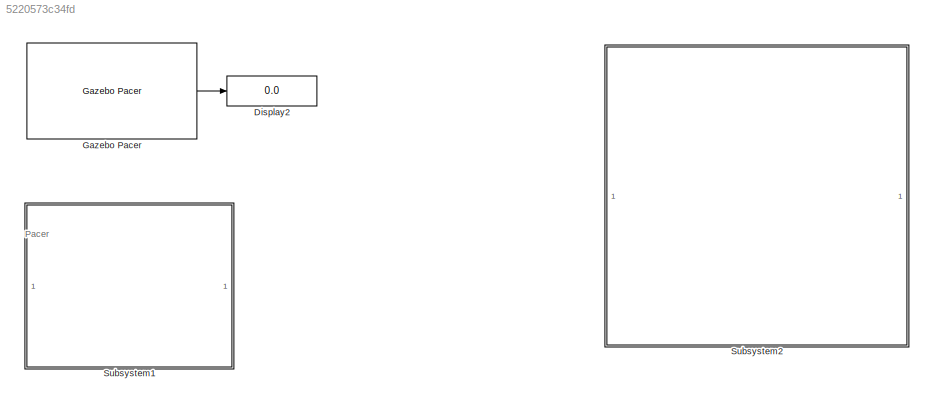
MODEL slx_5220573c34fd
KIND model
CONFIG AbsTol = auto
CONFIG EnableMultiTasking = off
CONFIG FixedStep = auto
CONFIG MaxStep = auto
CONFIG MinStep = auto
CONFIG RelTol = 1e-3
CONFIG SampleTimeConstraint = Unconstrained
CONFIG SolverName = VariableStepAuto
CONFIG StartTime = 0.0
CONFIG StopTime = 2
BLOCK [Display] Display2
  Decimation = 1
BLOCK [Reference] Gazebo Pacer  REF=robotgazebolib/Gazebo Pacer
  SourceBlock = robotgazebolib/Gazebo Pacer
  SourceType = Gazebo Pacer
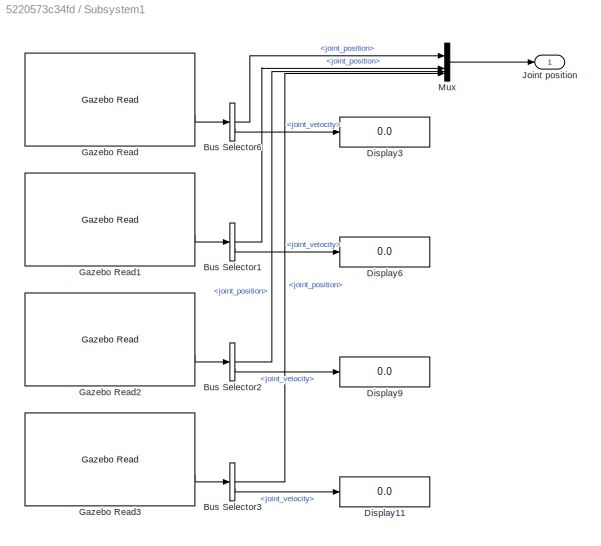
BLOCK [SubSystem] Subsystem1
BLOCK [BusSelector] Subsystem1/Bus Selector1
  OutputSignals = joint_position,joint_velocity
BLOCK [BusSelector] Subsystem1/Bus Selector2
  OutputSignals = joint_position,joint_velocity
BLOCK [BusSelector] Subsystem1/Bus Selector3
  OutputSignals = joint_position,joint_velocity
BLOCK [BusSelector] Subsystem1/Bus Selector6
  OutputSignals = joint_position,joint_velocity
BLOCK [Display] Subsystem1/Display11
  Decimation = 1
BLOCK [Display] Subsystem1/Display3
  Decimation = 1
BLOCK [Display] Subsystem1/Display6
  Decimation = 1
BLOCK [Display] Subsystem1/Display9
  Decimation = 1
BLOCK [Reference] Subsystem1/Gazebo Read  REF=robotgazebolib/Gazebo Read
  SourceBlock = robotgazebolib/Gazebo Read
  SourceType = Gazebo Read
BLOCK [Reference] Subsystem1/Gazebo Read1  REF=robotgazebolib/Gazebo Read
  SourceBlock = robotgazebolib/Gazebo Read
  SourceType = Gazebo Read
BLOCK [Reference] Subsystem1/Gazebo Read2  REF=robotgazebolib/Gazebo Read
  SourceBlock = robotgazebolib/Gazebo Read
  SourceType = Gazebo Read
BLOCK [Reference] Subsystem1/Gazebo Read3  REF=robotgazebolib/Gazebo Read
  SourceBlock = robotgazebolib/Gazebo Read
  SourceType = Gazebo Read
BLOCK [Outport] Subsystem1/Joint position
BLOCK [Mux] Subsystem1/Mux
  DisplayOption = bar
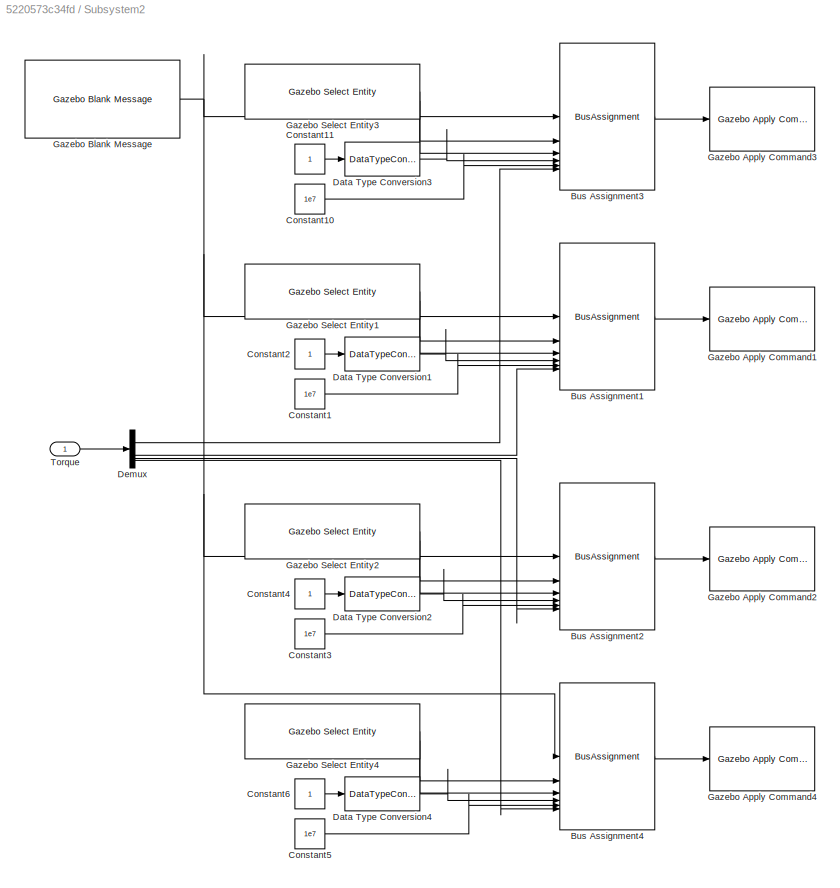
BLOCK [SubSystem] Subsystem2
BLOCK [BusAssignment] Subsystem2/Bus Assignment1
  AssignedSignals = model_name,joint_name,index,duration.nano_seconds,effort
BLOCK [BusAssignment] Subsystem2/Bus Assignment2
  AssignedSignals = model_name,joint_name,index,duration.nano_seconds,effort
BLOCK [BusAssignment] Subsystem2/Bus Assignment3
  AssignedSignals = model_name,joint_name,index,duration.nano_seconds,effort
BLOCK [BusAssignment] Subsystem2/Bus Assignment4
  AssignedSignals = model_name,joint_name,index,duration.nano_seconds,effort
BLOCK [Constant] Subsystem2/Constant1
  Value = 1e7
BLOCK [Constant] Subsystem2/Constant10
  Value = 1e7
BLOCK [Constant] Subsystem2/Constant11
BLOCK [Constant] Subsystem2/Constant2
BLOCK [Constant] Subsystem2/Constant3
  Value = 1e7
BLOCK [Constant] Subsystem2/Constant4
BLOCK [Constant] Subsystem2/Constant5
  Value = 1e7
BLOCK [Constant] Subsystem2/Constant6
BLOCK [DataTypeConversion] Subsystem2/Data Type Conversion1
  OutDataTypeStr = uint32
  RndMeth = Floor
  SaturateOnIntegerOverflow = off
BLOCK [DataTypeConversion] Subsystem2/Data Type Conversion2
  OutDataTypeStr = uint32
  RndMeth = Floor
  SaturateOnIntegerOverflow = off
BLOCK [DataTypeConversion] Subsystem2/Data Type Conversion3
  OutDataTypeStr = uint32
  RndMeth = Floor
  SaturateOnIntegerOverflow = off
BLOCK [DataTypeConversion] Subsystem2/Data Type Conversion4
  OutDataTypeStr = uint32
  RndMeth = Floor
  SaturateOnIntegerOverflow = off
BLOCK [Demux] Subsystem2/Demux
BLOCK [Reference] Subsystem2/Gazebo Apply Command1  REF=robotgazebolib/Gazebo Apply Command
  SourceBlock = robotgazebolib/Gazebo Apply Command
  SourceType = Gazebo Apply Command
BLOCK [Reference] Subsystem2/Gazebo Apply Command2  REF=robotgazebolib/Gazebo Apply Command
  SourceBlock = robotgazebolib/Gazebo Apply Command
  SourceType = Gazebo Apply Command
BLOCK [Reference] Subsystem2/Gazebo Apply Command3  REF=robotgazebolib/Gazebo Apply Command
  SourceBlock = robotgazebolib/Gazebo Apply Command
  SourceType = Gazebo Apply Command
BLOCK [Reference] Subsystem2/Gazebo Apply Command4  REF=robotgazebolib/Gazebo Apply Command
  SourceBlock = robotgazebolib/Gazebo Apply Command
  SourceType = Gazebo Apply Command
BLOCK [Reference] Subsystem2/Gazebo Blank Message  REF=robotgazebolib/Gazebo Blank Message
  SourceBlock = robotgazebolib/Gazebo Blank Message
  SourceType = Gazebo Blank Message
BLOCK [Reference] Subsystem2/Gazebo Select Entity1  REF=robotgazebolib/Gazebo Select Entity
  SourceBlock = robotgazebolib/Gazebo Select Entity
  SourceType = Gazebo Select Entity
BLOCK [Reference] Subsystem2/Gazebo Select Entity2  REF=robotgazebolib/Gazebo Select Entity
  SourceBlock = robotgazebolib/Gazebo Select Entity
  SourceType = Gazebo Select Entity
BLOCK [Reference] Subsystem2/Gazebo Select Entity3  REF=robotgazebolib/Gazebo Select Entity
  SourceBlock = robotgazebolib/Gazebo Select Entity
  SourceType = Gazebo Select Entity
BLOCK [Reference] Subsystem2/Gazebo Select Entity4  REF=robotgazebolib/Gazebo Select Entity
  SourceBlock = robotgazebolib/Gazebo Select Entity
  SourceType = Gazebo Select Entity
BLOCK [Inport] Subsystem2/Torque
ANNOTATION (root): Pacer
LINE Gazebo Pacer:1 -> Display2:1
LINE Subsystem1/Bus Selector1:1 -> Subsystem1/Mux:2
LINE Subsystem1/Bus Selector1:2 -> Subsystem1/Display6:1
LINE Subsystem1/Bus Selector2:1 -> Subsystem1/Mux:3
LINE Subsystem1/Bus Selector2:2 -> Subsystem1/Display9:1
LINE Subsystem1/Bus Selector3:1 -> Subsystem1/Mux:4
LINE Subsystem1/Bus Selector3:2 -> Subsystem1/Display11:1
LINE Subsystem1/Bus Selector6:1 -> Subsystem1/Mux:1
LINE Subsystem1/Bus Selector6:2 -> Subsystem1/Display3:1
LINE Subsystem1/Gazebo Read1:2 -> Subsystem1/Bus Selector1:1
LINE Subsystem1/Gazebo Read2:2 -> Subsystem1/Bus Selector2:1
LINE Subsystem1/Gazebo Read3:2 -> Subsystem1/Bus Selector3:1
LINE Subsystem1/Gazebo Read:2 -> Subsystem1/Bus Selector6:1
LINE Subsystem1/Mux:1 -> Subsystem1/Joint position:1
LINE Subsystem2/Bus Assignment1:1 -> Subsystem2/Gazebo Apply Command1:1
LINE Subsystem2/Bus Assignment2:1 -> Subsystem2/Gazebo Apply Command2:1
LINE Subsystem2/Bus Assignment3:1 -> Subsystem2/Gazebo Apply Command3:1
LINE Subsystem2/Bus Assignment4:1 -> Subsystem2/Gazebo Apply Command4:1
LINE Subsystem2/Constant10:1 -> Subsystem2/Bus Assignment3:5
LINE Subsystem2/Constant11:1 -> Subsystem2/Data Type Conversion3:1
LINE Subsystem2/Constant1:1 -> Subsystem2/Bus Assignment1:5
LINE Subsystem2/Constant2:1 -> Subsystem2/Data Type Conversion1:1
LINE Subsystem2/Constant3:1 -> Subsystem2/Bus Assignment2:5
LINE Subsystem2/Constant4:1 -> Subsystem2/Data Type Conversion2:1
LINE Subsystem2/Constant5:1 -> Subsystem2/Bus Assignment4:5
LINE Subsystem2/Constant6:1 -> Subsystem2/Data Type Conversion4:1
LINE Subsystem2/Data Type Conversion1:1 -> Subsystem2/Bus Assignment1:4
LINE Subsystem2/Data Type Conversion2:1 -> Subsystem2/Bus Assignment2:4
LINE Subsystem2/Data Type Conversion3:1 -> Subsystem2/Bus Assignment3:4
LINE Subsystem2/Data Type Conversion4:1 -> Subsystem2/Bus Assignment4:4
LINE Subsystem2/Demux:1 -> Subsystem2/Bus Assignment3:6
LINE Subsystem2/Demux:2 -> Subsystem2/Bus Assignment1:6
LINE Subsystem2/Demux:3 -> Subsystem2/Bus Assignment2:6
LINE Subsystem2/Demux:4 -> Subsystem2/Bus Assignment4:6
NET Subsystem2/Gazebo Blank Message:1 -> Subsystem2/Bus Assignment1:1, Subsystem2/Bus Assignment2:1, Subsystem2/Bus Assignment3:1, Subsystem2/Bus Assignment4:1
LINE Subsystem2/Gazebo Select Entity1:1 -> Subsystem2/Bus Assignment1:2
LINE Subsystem2/Gazebo Select Entity1:2 -> Subsystem2/Bus Assignment1:3
LINE Subsystem2/Gazebo Select Entity2:1 -> Subsystem2/Bus Assignment2:2
LINE Subsystem2/Gazebo Select Entity2:2 -> Subsystem2/Bus Assignment2:3
LINE Subsystem2/Gazebo Select Entity3:1 -> Subsystem2/Bus Assignment3:2
LINE Subsystem2/Gazebo Select Entity3:2 -> Subsystem2/Bus Assignment3:3
LINE Subsystem2/Gazebo Select Entity4:1 -> Subsystem2/Bus Assignment4:2
LINE Subsystem2/Gazebo Select Entity4:2 -> Subsystem2/Bus Assignment4:3
LINE Subsystem2/Torque:1 -> Subsystem2/Demux:1
note: NET lines group one-source signal fan-out (src -> all destinations, sorted); 1:1 wires keep LINE
